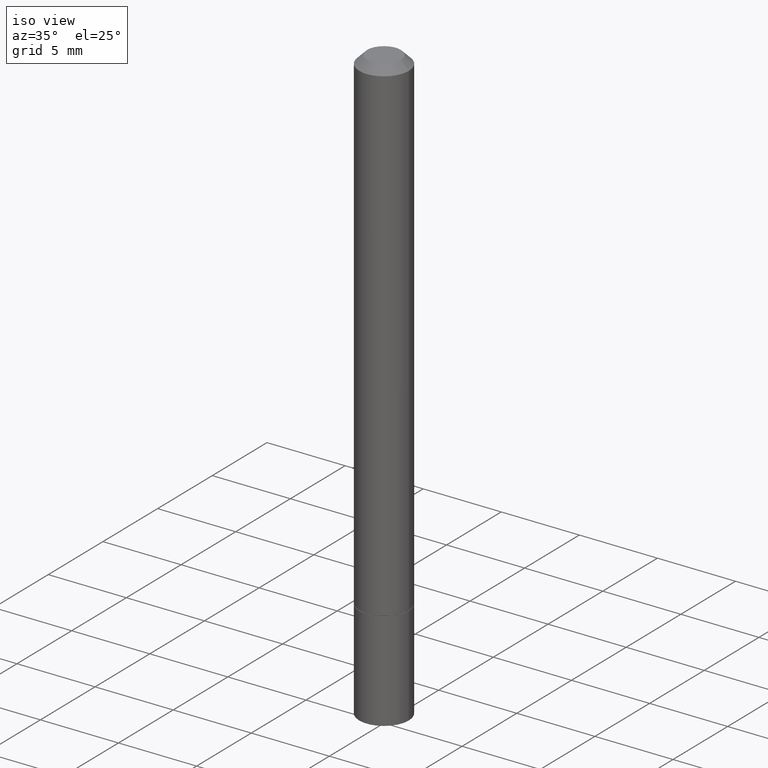
[diagram: clean part render]
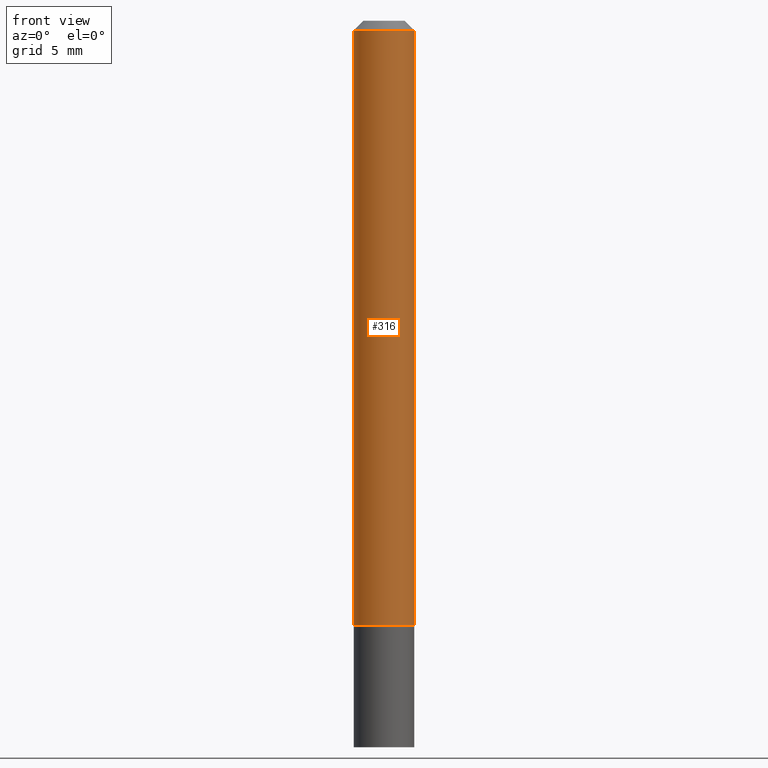
[diagram: tour spotlight — one face highlighted and labeled with its STEP entity id]
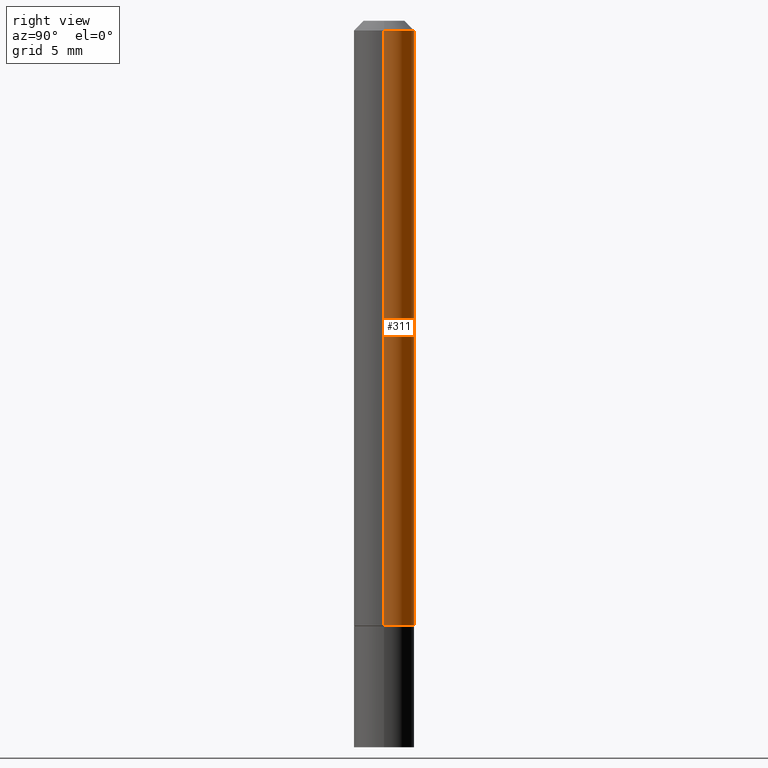
[diagram: tour spotlight — one face highlighted and labeled with its STEP entity id]
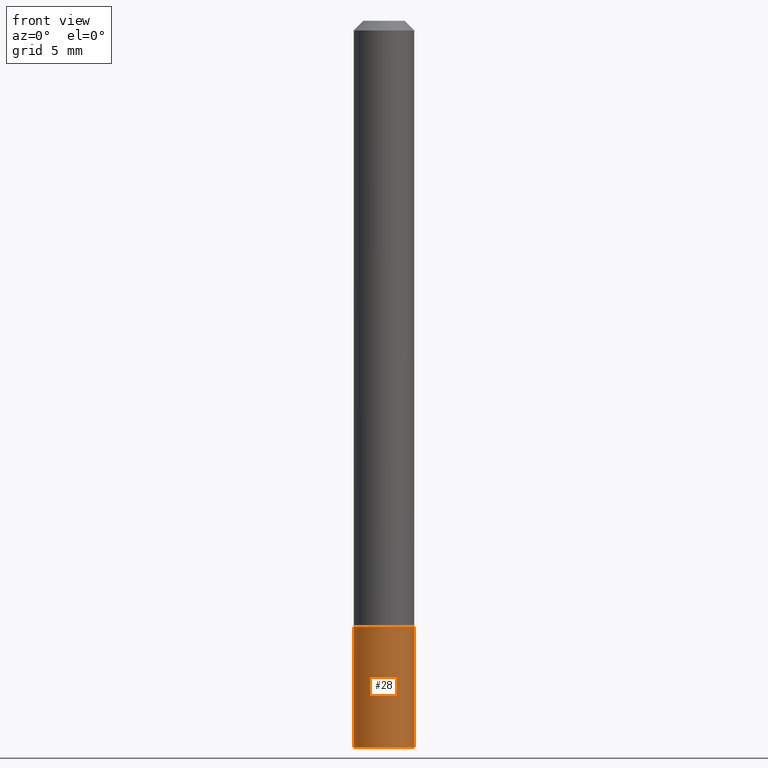
[diagram: tour spotlight — one face highlighted and labeled with its STEP entity id]
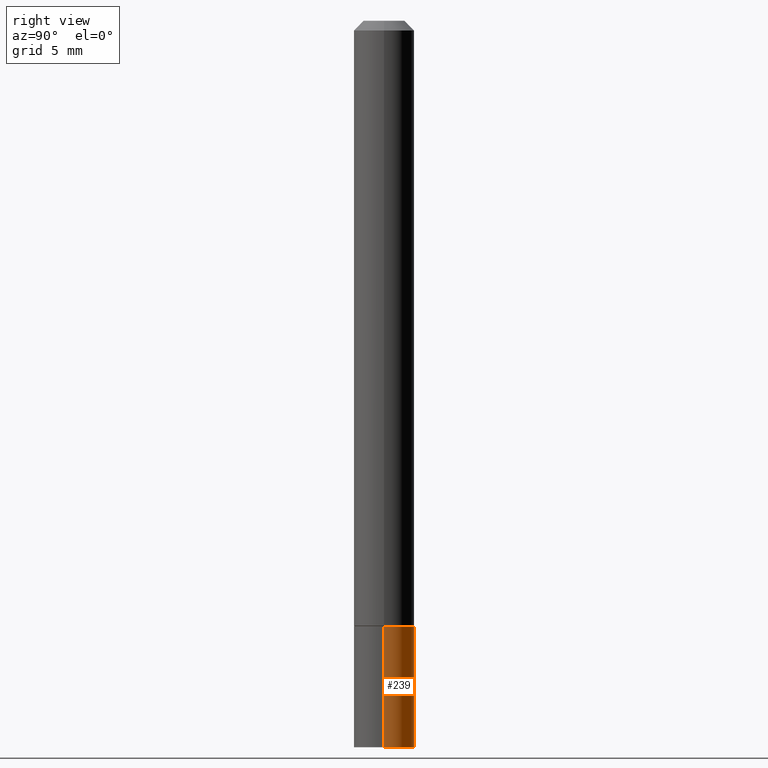
[diagram: tour spotlight — one face highlighted and labeled with its STEP entity id]
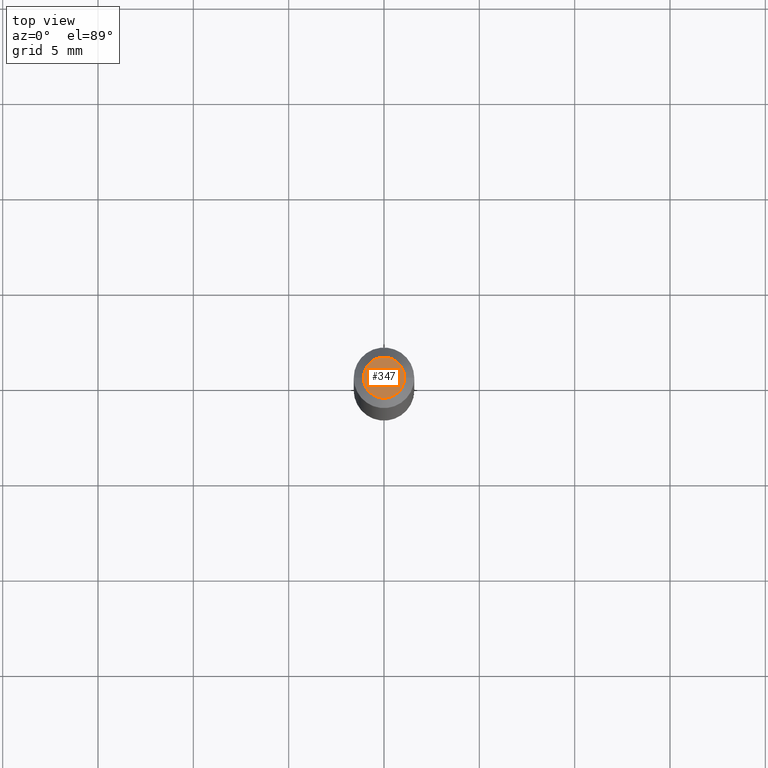
[diagram: tour spotlight — one face highlighted and labeled with its STEP entity id]
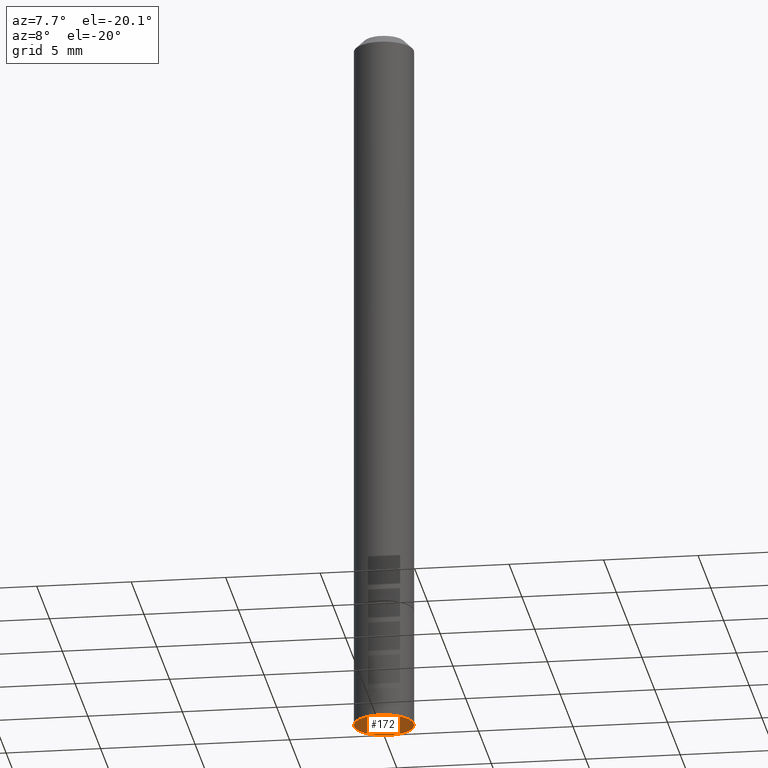
[diagram: tour spotlight — one face highlighted and labeled with its STEP entity id]
A machine part: a face-by-face anatomy tour. The part has 12 B-rep faces; the first image is the clean iso view, then the 6 largest visible faces are spotlighted one at a time (largest first), each with its STEP entity span.

Face 1 — front view, entity #316. In plain terms, the highlighted cylindrical surface (edge-blend (fillet) strip) has radius 1.5875 mm, axis along (-0, 0, 1).
Definition (entity closure, byte-faithful):
#1 = DIRECTION ( 'NONE',  ( 1.000000000000000000, -6.982962677686267499E-15, 4.876176775795935793E-29 ) ) ;
#6 = EDGE_CURVE ( 'NONE', #63, #87, #224, .T. ) ;
#12 = DIRECTION ( 'NONE',  ( -2.445468806185136877E-29, 3.491481338843145188E-15, 1.000000000000000000 ) ) ;
#18 = VERTEX_POINT ( 'NONE', #39 ) ;
#23 = DIRECTION ( 'NONE',  ( -2.445468806185136597E-29, 3.491481338843145583E-15, 1.000000000000000000 ) ) ;
#33 = ORIENTED_EDGE ( 'NONE', *, *, #142, .F. ) ;
#39 = CARTESIAN_POINT ( 'NONE',  ( -0.06249999999999995143, 3.666055405785282233E-16, -0.02000000000000005246 ) ) ;
#47 = DIRECTION ( 'NONE',  ( -2.445468806185136597E-29, 3.491481338843145583E-15, 1.000000000000000000 ) ) ;
#53 = CARTESIAN_POINT ( 'NONE',  ( -0.06250000000000008327, -1.771255699645910018E-15, -1.248999999999999888 ) ) ;
#59 = EDGE_CURVE ( 'NONE', #87, #265, #236, .T. ) ;
#63 = VERTEX_POINT ( 'NONE', #53 ) ;
#64 = CARTESIAN_POINT ( 'NONE',  ( 0.06249999999999995143, -4.986107516375834292E-16, -0.02000000000000005246 ) ) ;
#75 = CARTESIAN_POINT ( 'NONE',  ( 3.054390538925235704E-29, -4.360860192215088675E-15, -1.248999999999999888 ) ) ;
#87 = VERTEX_POINT ( 'NONE', #181 ) ;
#91 = EDGE_CURVE ( 'NONE', #63, #18, #130, .T. ) ;
#129 = AXIS2_PLACEMENT_3D ( 'NONE', #330, #47, #335 ) ;
#130 = LINE ( 'NONE', #274, #290 ) ;
#137 = ORIENTED_EDGE ( 'NONE', *, *, #6, .T. ) ;
#142 = EDGE_CURVE ( 'NONE', #18, #265, #286, .T. ) ;
#145 = CYLINDRICAL_SURFACE ( 'NONE', #232, 0.06250000000000001388 ) ;
#181 = CARTESIAN_POINT ( 'NONE',  ( 0.06250000000000008327, -4.797295359570480345E-15, -1.248999999999999888 ) ) ;
#224 = CIRCLE ( 'NONE', #299, 0.06250000000000008327 ) ;
#232 = AXIS2_PLACEMENT_3D ( 'NONE', #279, #23, #1 ) ;
#236 = LINE ( 'NONE', #306, #318 ) ;
#252 = FACE_OUTER_BOUND ( 'NONE', #293, .T. ) ;
#259 = DIRECTION ( 'NONE',  ( 1.000000000000000000, -6.982962677686261189E-15, 0.000000000000000000 ) ) ;
#265 = VERTEX_POINT ( 'NONE', #64 ) ;
#274 = CARTESIAN_POINT ( 'NONE',  ( -0.06250000000000001388, 4.440892098500627148E-16, -3.074334431409317165E-30 ) ) ;
#279 = CARTESIAN_POINT ( 'NONE',  ( 0.000000000000000000, 0.000000000000000000, 0.000000000000000000 ) ) ;
#286 = CIRCLE ( 'NONE', #129, 0.06249999999999995143 ) ;
#290 = VECTOR ( 'NONE', #354, 39.37007874015748143 ) ;
#291 = DIRECTION ( 'NONE',  ( -2.445468806185136597E-29, 3.491481338843145583E-15, 1.000000000000000000 ) ) ;
#293 = EDGE_LOOP ( 'NONE', ( #356, #137, #351, #33 ) ) ;
#299 = AXIS2_PLACEMENT_3D ( 'NONE', #75, #291, #259 ) ;
#306 = CARTESIAN_POINT ( 'NONE',  ( 0.06250000000000001388, -4.364351673553918173E-16, 3.047610484872460571E-30 ) ) ;
#316 = ADVANCED_FACE ( 'NONE', ( #252 ), #145, .T. ) ;
#318 = VECTOR ( 'NONE', #12, 39.37007874015748143 ) ;
#330 = CARTESIAN_POINT ( 'NONE',  ( 4.890937612370285420E-31, -6.982962677686308865E-17, -0.02000000000000005246 ) ) ;
#335 = DIRECTION ( 'NONE',  ( 1.000000000000000000, -6.982962677686266711E-15, 0.000000000000000000 ) ) ;
#351 = ORIENTED_EDGE ( 'NONE', *, *, #59, .T. ) ;
#354 = DIRECTION ( 'NONE',  ( -2.445468806185136877E-29, 3.491481338843145188E-15, 1.000000000000000000 ) ) ;
#356 = ORIENTED_EDGE ( 'NONE', *, *, #91, .F. ) ;

Face 2 — right view, entity #311. In plain terms, the highlighted cylindrical surface (edge-blend (fillet) strip) has radius 1.5875 mm, axis along (-0, 0, 1).
Definition (entity closure, byte-faithful):
#8 = ORIENTED_EDGE ( 'NONE', *, *, #59, .F. ) ;
#12 = DIRECTION ( 'NONE',  ( -2.445468806185136877E-29, 3.491481338843145188E-15, 1.000000000000000000 ) ) ;
#13 = ORIENTED_EDGE ( 'NONE', *, *, #263, .T. ) ;
#18 = VERTEX_POINT ( 'NONE', #39 ) ;
#39 = CARTESIAN_POINT ( 'NONE',  ( -0.06249999999999995143, 3.666055405785282233E-16, -0.02000000000000005246 ) ) ;
#40 = AXIS2_PLACEMENT_3D ( 'NONE', #322, #237, #243 ) ;
#53 = CARTESIAN_POINT ( 'NONE',  ( -0.06250000000000008327, -1.771255699645910018E-15, -1.248999999999999888 ) ) ;
#56 = DIRECTION ( 'NONE',  ( 1.000000000000000000, -6.982962677686267499E-15, 4.876176775795935793E-29 ) ) ;
#59 = EDGE_CURVE ( 'NONE', #87, #265, #236, .T. ) ;
#63 = VERTEX_POINT ( 'NONE', #53 ) ;
#64 = CARTESIAN_POINT ( 'NONE',  ( 0.06249999999999995143, -4.986107516375834292E-16, -0.02000000000000005246 ) ) ;
#71 = CARTESIAN_POINT ( 'NONE',  ( 0.000000000000000000, 0.000000000000000000, 0.000000000000000000 ) ) ;
#74 = DIRECTION ( 'NONE',  ( 1.000000000000000000, -6.982962677686266711E-15, 0.000000000000000000 ) ) ;
#87 = VERTEX_POINT ( 'NONE', #181 ) ;
#91 = EDGE_CURVE ( 'NONE', #63, #18, #130, .T. ) ;
#103 = CYLINDRICAL_SURFACE ( 'NONE', #219, 0.06250000000000001388 ) ;
#130 = LINE ( 'NONE', #274, #290 ) ;
#144 = AXIS2_PLACEMENT_3D ( 'NONE', #157, #295, #74 ) ;
#157 = CARTESIAN_POINT ( 'NONE',  ( 4.890937612370285420E-31, -6.982962677686308865E-17, -0.02000000000000005246 ) ) ;
#181 = CARTESIAN_POINT ( 'NONE',  ( 0.06250000000000008327, -4.797295359570480345E-15, -1.248999999999999888 ) ) ;
#186 = DIRECTION ( 'NONE',  ( -2.445468806185136597E-29, 3.491481338843145583E-15, 1.000000000000000000 ) ) ;
#197 = CIRCLE ( 'NONE', #40, 0.06250000000000008327 ) ;
#219 = AXIS2_PLACEMENT_3D ( 'NONE', #71, #186, #56 ) ;
#234 = EDGE_CURVE ( 'NONE', #265, #18, #278, .T. ) ;
#235 = ORIENTED_EDGE ( 'NONE', *, *, #234, .F. ) ;
#236 = LINE ( 'NONE', #306, #318 ) ;
#237 = DIRECTION ( 'NONE',  ( -2.445468806185136597E-29, 3.491481338843145583E-15, 1.000000000000000000 ) ) ;
#243 = DIRECTION ( 'NONE',  ( 1.000000000000000000, -6.982962677686261189E-15, 0.000000000000000000 ) ) ;
#263 = EDGE_CURVE ( 'NONE', #87, #63, #197, .T. ) ;
#265 = VERTEX_POINT ( 'NONE', #64 ) ;
#274 = CARTESIAN_POINT ( 'NONE',  ( -0.06250000000000001388, 4.440892098500627148E-16, -3.074334431409317165E-30 ) ) ;
#278 = CIRCLE ( 'NONE', #144, 0.06249999999999995143 ) ;
#290 = VECTOR ( 'NONE', #354, 39.37007874015748143 ) ;
#295 = DIRECTION ( 'NONE',  ( -2.445468806185136597E-29, 3.491481338843145583E-15, 1.000000000000000000 ) ) ;
#306 = CARTESIAN_POINT ( 'NONE',  ( 0.06250000000000001388, -4.364351673553918173E-16, 3.047610484872460571E-30 ) ) ;
#311 = ADVANCED_FACE ( 'NONE', ( #355 ), #103, .T. ) ;
#318 = VECTOR ( 'NONE', #12, 39.37007874015748143 ) ;
#322 = CARTESIAN_POINT ( 'NONE',  ( 3.054390538925235704E-29, -4.360860192215088675E-15, -1.248999999999999888 ) ) ;
#331 = EDGE_LOOP ( 'NONE', ( #13, #353, #235, #8 ) ) ;
#353 = ORIENTED_EDGE ( 'NONE', *, *, #91, .T. ) ;
#354 = DIRECTION ( 'NONE',  ( -2.445468806185136877E-29, 3.491481338843145188E-15, 1.000000000000000000 ) ) ;
#355 = FACE_OUTER_BOUND ( 'NONE', #331, .T. ) ;

Face 3 — front view, entity #28. In plain terms, the highlighted cylindrical surface (edge-blend (fillet) strip) has radius 1.5875 mm, axis along (-0, 0, 1).
Definition (entity closure, byte-faithful):
#5 = VECTOR ( 'NONE', #136, 39.37007874015748143 ) ;
#16 = ORIENTED_EDGE ( 'NONE', *, *, #110, .T. ) ;
#27 = DIRECTION ( 'NONE',  ( 1.000000000000000000, -6.982962677686261189E-15, 0.000000000000000000 ) ) ;
#28 = ADVANCED_FACE ( 'NONE', ( #161 ), #189, .T. ) ;
#35 = ORIENTED_EDGE ( 'NONE', *, *, #296, .F. ) ;
#45 = CIRCLE ( 'NONE', #165, 0.06250000000000001388 ) ;
#52 = DIRECTION ( 'NONE',  ( -2.445468806185136597E-29, 3.491481338843145583E-15, 1.000000000000000000 ) ) ;
#54 = LINE ( 'NONE', #99, #5 ) ;
#99 = CARTESIAN_POINT ( 'NONE',  ( -0.06250000000000001388, 4.440892098500627148E-16, -3.074334431409317165E-30 ) ) ;
#104 = CIRCLE ( 'NONE', #255, 0.06250000000000001388 ) ;
#106 = CARTESIAN_POINT ( 'NONE',  ( -0.06250000000000001388, -4.356697631059263102E-15, -1.500000000000000222 ) ) ;
#110 = EDGE_CURVE ( 'NONE', #177, #359, #185, .T. ) ;
#135 = CARTESIAN_POINT ( 'NONE',  ( 0.06250000000000001388, -5.673657175620109846E-15, -1.500000000000000222 ) ) ;
#136 = DIRECTION ( 'NONE',  ( -2.445468806185136877E-29, 3.491481338843145188E-15, 1.000000000000000000 ) ) ;
#140 = DIRECTION ( 'NONE',  ( -2.445468806185136597E-29, 3.491481338843145583E-15, 1.000000000000000000 ) ) ;
#149 = VERTEX_POINT ( 'NONE', #178 ) ;
#161 = FACE_OUTER_BOUND ( 'NONE', #203, .T. ) ;
#165 = AXIS2_PLACEMENT_3D ( 'NONE', #271, #140, #210 ) ;
#167 = CARTESIAN_POINT ( 'NONE',  ( 3.668203209277704895E-29, -5.237222008264718177E-15, -1.500000000000000222 ) ) ;
#170 = CARTESIAN_POINT ( 'NONE',  ( 0.06250000000000001388, -4.800786840909324141E-15, -1.250000000000000000 ) ) ;
#177 = VERTEX_POINT ( 'NONE', #135 ) ;
#178 = CARTESIAN_POINT ( 'NONE',  ( -0.06250000000000001388, -4.356697631059263102E-15, -1.250000000000000000 ) ) ;
#183 = AXIS2_PLACEMENT_3D ( 'NONE', #305, #52, #358 ) ;
#185 = LINE ( 'NONE', #302, #244 ) ;
#189 = CYLINDRICAL_SURFACE ( 'NONE', #183, 0.06250000000000001388 ) ;
#203 = EDGE_LOOP ( 'NONE', ( #208, #297, #16, #35 ) ) ;
#206 = VERTEX_POINT ( 'NONE', #106 ) ;
#208 = ORIENTED_EDGE ( 'NONE', *, *, #253, .F. ) ;
#210 = DIRECTION ( 'NONE',  ( 1.000000000000000000, -6.982962677686269077E-15, 0.000000000000000000 ) ) ;
#217 = DIRECTION ( 'NONE',  ( -2.445468806185136877E-29, 3.491481338843145188E-15, 1.000000000000000000 ) ) ;
#244 = VECTOR ( 'NONE', #217, 39.37007874015748143 ) ;
#253 = EDGE_CURVE ( 'NONE', #206, #149, #54, .T. ) ;
#255 = AXIS2_PLACEMENT_3D ( 'NONE', #167, #314, #27 ) ;
#271 = CARTESIAN_POINT ( 'NONE',  ( 3.056836007731421306E-29, -4.364351673553932471E-15, -1.250000000000000000 ) ) ;
#296 = EDGE_CURVE ( 'NONE', #149, #359, #45, .T. ) ;
#297 = ORIENTED_EDGE ( 'NONE', *, *, #339, .T. ) ;
#302 = CARTESIAN_POINT ( 'NONE',  ( 0.06250000000000001388, -4.364351673553918173E-16, 3.047610484872460571E-30 ) ) ;
#305 = CARTESIAN_POINT ( 'NONE',  ( 0.000000000000000000, 0.000000000000000000, 0.000000000000000000 ) ) ;
#314 = DIRECTION ( 'NONE',  ( -2.445468806185136597E-29, 3.491481338843145583E-15, 1.000000000000000000 ) ) ;
#339 = EDGE_CURVE ( 'NONE', #206, #177, #104, .T. ) ;
#358 = DIRECTION ( 'NONE',  ( 1.000000000000000000, -6.982962677686267499E-15, 4.876176775795935793E-29 ) ) ;
#359 = VERTEX_POINT ( 'NONE', #170 ) ;

Face 4 — right view, entity #239. In plain terms, the highlighted cylindrical surface (edge-blend (fillet) strip) has radius 1.5875 mm, axis along (-0, 0, 1).
Definition (entity closure, byte-faithful):
#5 = VECTOR ( 'NONE', #136, 39.37007874015748143 ) ;
#10 = ORIENTED_EDGE ( 'NONE', *, *, #168, .T. ) ;
#15 = CARTESIAN_POINT ( 'NONE',  ( 0.000000000000000000, 0.000000000000000000, 0.000000000000000000 ) ) ;
#36 = ORIENTED_EDGE ( 'NONE', *, *, #253, .T. ) ;
#48 = FACE_OUTER_BOUND ( 'NONE', #148, .T. ) ;
#54 = LINE ( 'NONE', #99, #5 ) ;
#58 = DIRECTION ( 'NONE',  ( -2.445468806185136597E-29, 3.491481338843145583E-15, 1.000000000000000000 ) ) ;
#69 = AXIS2_PLACEMENT_3D ( 'NONE', #98, #156, #188 ) ;
#98 = CARTESIAN_POINT ( 'NONE',  ( 3.668203209277704895E-29, -5.237222008264718177E-15, -1.500000000000000222 ) ) ;
#99 = CARTESIAN_POINT ( 'NONE',  ( -0.06250000000000001388, 4.440892098500627148E-16, -3.074334431409317165E-30 ) ) ;
#106 = CARTESIAN_POINT ( 'NONE',  ( -0.06250000000000001388, -4.356697631059263102E-15, -1.500000000000000222 ) ) ;
#107 = CYLINDRICAL_SURFACE ( 'NONE', #230, 0.06250000000000001388 ) ;
#110 = EDGE_CURVE ( 'NONE', #177, #359, #185, .T. ) ;
#118 = DIRECTION ( 'NONE',  ( 1.000000000000000000, -6.982962677686269077E-15, 0.000000000000000000 ) ) ;
#135 = CARTESIAN_POINT ( 'NONE',  ( 0.06250000000000001388, -5.673657175620109846E-15, -1.500000000000000222 ) ) ;
#136 = DIRECTION ( 'NONE',  ( -2.445468806185136877E-29, 3.491481338843145188E-15, 1.000000000000000000 ) ) ;
#148 = EDGE_LOOP ( 'NONE', ( #10, #36, #350, #268 ) ) ;
#149 = VERTEX_POINT ( 'NONE', #178 ) ;
#156 = DIRECTION ( 'NONE',  ( -2.445468806185136597E-29, 3.491481338843145583E-15, 1.000000000000000000 ) ) ;
#166 = CARTESIAN_POINT ( 'NONE',  ( 3.056836007731421306E-29, -4.364351673553932471E-15, -1.250000000000000000 ) ) ;
#168 = EDGE_CURVE ( 'NONE', #177, #206, #257, .T. ) ;
#170 = CARTESIAN_POINT ( 'NONE',  ( 0.06250000000000001388, -4.800786840909324141E-15, -1.250000000000000000 ) ) ;
#177 = VERTEX_POINT ( 'NONE', #135 ) ;
#178 = CARTESIAN_POINT ( 'NONE',  ( -0.06250000000000001388, -4.356697631059263102E-15, -1.250000000000000000 ) ) ;
#185 = LINE ( 'NONE', #302, #244 ) ;
#188 = DIRECTION ( 'NONE',  ( 1.000000000000000000, -6.982962677686261189E-15, 0.000000000000000000 ) ) ;
#206 = VERTEX_POINT ( 'NONE', #106 ) ;
#216 = DIRECTION ( 'NONE',  ( -2.445468806185136597E-29, 3.491481338843145583E-15, 1.000000000000000000 ) ) ;
#217 = DIRECTION ( 'NONE',  ( -2.445468806185136877E-29, 3.491481338843145188E-15, 1.000000000000000000 ) ) ;
#230 = AXIS2_PLACEMENT_3D ( 'NONE', #15, #216, #267 ) ;
#239 = ADVANCED_FACE ( 'NONE', ( #48 ), #107, .T. ) ;
#244 = VECTOR ( 'NONE', #217, 39.37007874015748143 ) ;
#253 = EDGE_CURVE ( 'NONE', #206, #149, #54, .T. ) ;
#257 = CIRCLE ( 'NONE', #69, 0.06250000000000001388 ) ;
#267 = DIRECTION ( 'NONE',  ( 1.000000000000000000, -6.982962677686267499E-15, 4.876176775795935793E-29 ) ) ;
#268 = ORIENTED_EDGE ( 'NONE', *, *, #110, .F. ) ;
#302 = CARTESIAN_POINT ( 'NONE',  ( 0.06250000000000001388, -4.364351673553918173E-16, 3.047610484872460571E-30 ) ) ;
#342 = AXIS2_PLACEMENT_3D ( 'NONE', #166, #58, #118 ) ;
#344 = CIRCLE ( 'NONE', #342, 0.06250000000000001388 ) ;
#348 = EDGE_CURVE ( 'NONE', #359, #149, #344, .T. ) ;
#350 = ORIENTED_EDGE ( 'NONE', *, *, #348, .F. ) ;
#359 = VERTEX_POINT ( 'NONE', #170 ) ;

Face 5 — top view, entity #347. In plain terms, the highlighted planar face has unit normal (0, -0, -1).
Definition (entity closure, byte-faithful):
#22 = CARTESIAN_POINT ( 'NONE',  ( 9.394662729016977403E-46, -1.341308853342402453E-31, -3.841661241090370459E-17 ) ) ;
#43 = VERTEX_POINT ( 'NONE', #141 ) ;
#55 = EDGE_CURVE ( 'NONE', #43, #323, #95, .T. ) ;
#60 = CARTESIAN_POINT ( 'NONE',  ( -0.04250000000000002387, 3.316907271900973138E-16, -3.841661241090589861E-17 ) ) ;
#95 = CIRCLE ( 'NONE', #119, 0.04250000000000002387 ) ;
#114 = CARTESIAN_POINT ( 'NONE',  ( 2.967759138016664535E-16, 0.04250000000000002387, -1.675962631062856399E-16 ) ) ;
#119 = AXIS2_PLACEMENT_3D ( 'NONE', #191, #209, #153 ) ;
#128 = EDGE_LOOP ( 'NONE', ( #262, #184 ) ) ;
#141 = CARTESIAN_POINT ( 'NONE',  ( 0.04250000000000002387, -3.950909582714369417E-16, -3.841661241090128254E-17 ) ) ;
#153 = DIRECTION ( 'NONE',  ( 1.000000000000000000, -6.982962677686267499E-15, 4.870577812114081924E-29 ) ) ;
#160 = DIRECTION ( 'NONE',  ( -2.445468806185136597E-29, 3.491481338843145583E-15, 1.000000000000000000 ) ) ;
#173 = AXIS2_PLACEMENT_3D ( 'NONE', #114, #275, #282 ) ;
#179 = DIRECTION ( 'NONE',  ( 1.000000000000000000, -6.982962677686267499E-15, 4.870577812114081924E-29 ) ) ;
#184 = ORIENTED_EDGE ( 'NONE', *, *, #55, .T. ) ;
#191 = CARTESIAN_POINT ( 'NONE',  ( 9.394662729016977403E-46, -1.341308853342402453E-31, -3.841661241090370459E-17 ) ) ;
#209 = DIRECTION ( 'NONE',  ( -2.445468806185136597E-29, 3.491481338843145583E-15, 1.000000000000000000 ) ) ;
#251 = FACE_OUTER_BOUND ( 'NONE', #128, .T. ) ;
#262 = ORIENTED_EDGE ( 'NONE', *, *, #287, .T. ) ;
#275 = DIRECTION ( 'NONE',  ( 2.438088387897960049E-29, -3.491481338843145188E-15, -1.000000000000000000 ) ) ;
#282 = DIRECTION ( 'NONE',  ( -1.000000000000000000, 6.982962677686265922E-15, -4.876176775795935793E-29 ) ) ;
#287 = EDGE_CURVE ( 'NONE', #323, #43, #319, .T. ) ;
#319 = CIRCLE ( 'NONE', #320, 0.04250000000000002387 ) ;
#320 = AXIS2_PLACEMENT_3D ( 'NONE', #22, #160, #179 ) ;
#323 = VERTEX_POINT ( 'NONE', #60 ) ;
#336 = PLANE ( 'NONE',  #173 ) ;
#347 = ADVANCED_FACE ( 'NONE', ( #251 ), #336, .F. ) ;

Face 6 — auxiliary view, entity #172. In plain terms, the highlighted planar face has unit normal (0, -0, -1).
Definition (entity closure, byte-faithful):
#19 = DIRECTION ( 'NONE',  ( 2.438088387897960049E-29, -3.491481338843145188E-15, -1.000000000000000000 ) ) ;
#27 = DIRECTION ( 'NONE',  ( 1.000000000000000000, -6.982962677686261189E-15, 0.000000000000000000 ) ) ;
#66 = DIRECTION ( 'NONE',  ( -1.000000000000000000, 6.982962677686265922E-15, -4.876176775795935793E-29 ) ) ;
#69 = AXIS2_PLACEMENT_3D ( 'NONE', #98, #156, #188 ) ;
#70 = CARTESIAN_POINT ( 'NONE',  ( 4.364351673554284500E-16, 0.06249999999999478195, -1.500000000000000444 ) ) ;
#98 = CARTESIAN_POINT ( 'NONE',  ( 3.668203209277704895E-29, -5.237222008264718177E-15, -1.500000000000000222 ) ) ;
#104 = CIRCLE ( 'NONE', #255, 0.06250000000000001388 ) ;
#105 = ORIENTED_EDGE ( 'NONE', *, *, #168, .F. ) ;
#106 = CARTESIAN_POINT ( 'NONE',  ( -0.06250000000000001388, -4.356697631059263102E-15, -1.500000000000000222 ) ) ;
#135 = CARTESIAN_POINT ( 'NONE',  ( 0.06250000000000001388, -5.673657175620109846E-15, -1.500000000000000222 ) ) ;
#154 = ORIENTED_EDGE ( 'NONE', *, *, #339, .F. ) ;
#156 = DIRECTION ( 'NONE',  ( -2.445468806185136597E-29, 3.491481338843145583E-15, 1.000000000000000000 ) ) ;
#167 = CARTESIAN_POINT ( 'NONE',  ( 3.668203209277704895E-29, -5.237222008264718177E-15, -1.500000000000000222 ) ) ;
#168 = EDGE_CURVE ( 'NONE', #177, #206, #257, .T. ) ;
#172 = ADVANCED_FACE ( 'NONE', ( #294 ), #304, .T. ) ;
#177 = VERTEX_POINT ( 'NONE', #135 ) ;
#188 = DIRECTION ( 'NONE',  ( 1.000000000000000000, -6.982962677686261189E-15, 0.000000000000000000 ) ) ;
#206 = VERTEX_POINT ( 'NONE', #106 ) ;
#211 = EDGE_LOOP ( 'NONE', ( #105, #154 ) ) ;
#250 = AXIS2_PLACEMENT_3D ( 'NONE', #70, #19, #66 ) ;
#255 = AXIS2_PLACEMENT_3D ( 'NONE', #167, #314, #27 ) ;
#257 = CIRCLE ( 'NONE', #69, 0.06250000000000001388 ) ;
#294 = FACE_OUTER_BOUND ( 'NONE', #211, .T. ) ;
#304 = PLANE ( 'NONE',  #250 ) ;
#314 = DIRECTION ( 'NONE',  ( -2.445468806185136597E-29, 3.491481338843145583E-15, 1.000000000000000000 ) ) ;
#339 = EDGE_CURVE ( 'NONE', #206, #177, #104, .T. ) ;